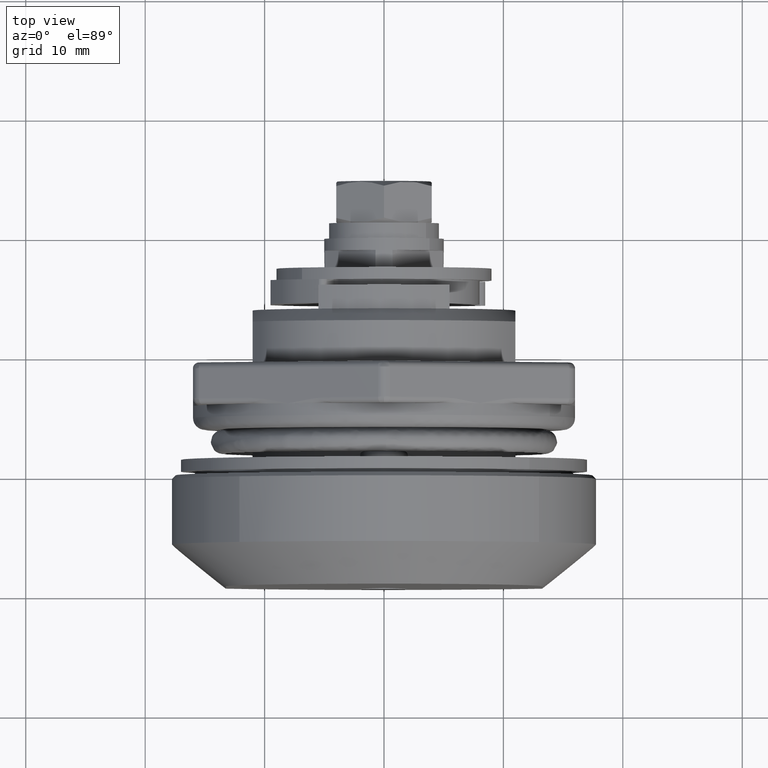
[diagram: clean part render]
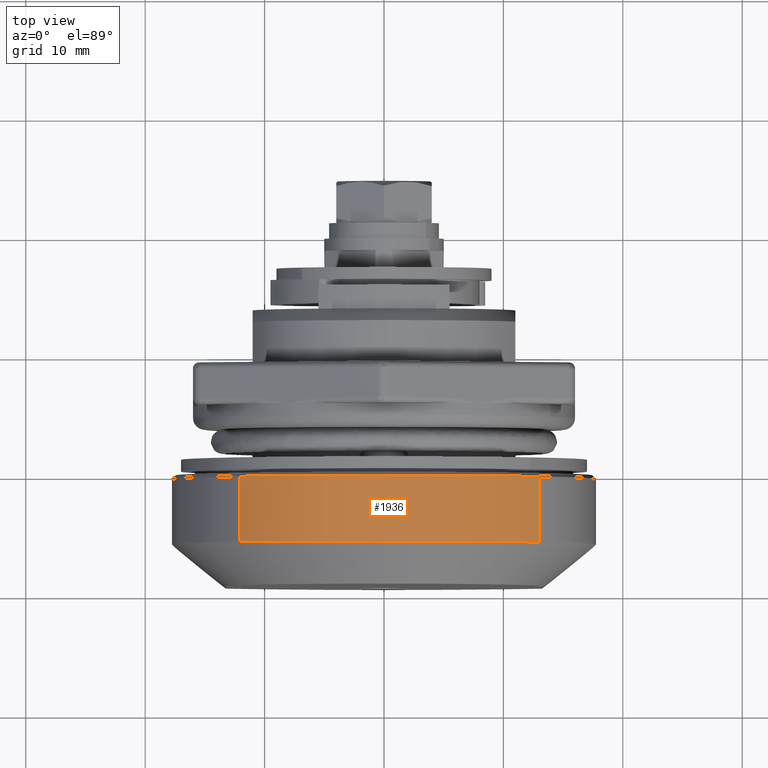
[diagram: same view with one face highlighted and labeled with its STEP entity id]
A machine part, top view. The second image highlights one B-rep face of the part: STEP entity #1936.
In plain terms, the highlighted face is a freeform B-spline surface patch.
Its self-contained STEP definition (entity closure, byte-faithful):
#1763=CARTESIAN_POINT('',(-0.299999999997220,12.107306242099250,12.979816105406989));
#1764=VERTEX_POINT('',#1763);
#1777=CARTESIAN_POINT('',(-0.300000000000000,0.0,17.750000000000000));
#1778=VERTEX_POINT('',#1777);
#1779=CARTESIAN_POINT('',(-0.300000000000000,0.0,17.750000000000000));
#1780=CARTESIAN_POINT('',(-0.299999999999770,1.006226829136668,17.750091193689251));
#1781=CARTESIAN_POINT('',(-0.299999999999415,2.532873131370646,17.619811555376351));
#1782=CARTESIAN_POINT('',(-0.299999999998932,4.670980593120332,17.155003029517321));
#1783=CARTESIAN_POINT('',(-0.299999999998435,6.786533789630799,16.468726694976510));
#1784=CARTESIAN_POINT('',(-0.299999999997842,9.411574786262937,15.176525024285720));
#1785=CARTESIAN_POINT('',(-0.299999999997425,11.219385422428079,13.808315737100470));
#1786=CARTESIAN_POINT('',(-0.299999999997220,12.107306242099250,12.979816105406989));
#1787=B_SPLINE_CURVE_WITH_KNOTS('',3,(#1779,#1780,#1781,#1782,#1783,#1784,#1785,#1786),.UNSPECIFIED.,.F.,.U.,(4,1,1,1,1,4),(0.000000012447657,3.018662438995902,4.580047523440021,6.557801926332750,9.680539656218102,13.323754446892350),.UNSPECIFIED.);
#1788=EDGE_CURVE('',#1778,#1764,#1787,.T.);
#1790=CARTESIAN_POINT('',(-0.300000000002757,-12.979816493215839,12.107306605198509));
#1791=VERTEX_POINT('',#1790);
#1792=CARTESIAN_POINT('',(-0.300000000002757,-12.979816493215839,12.107306605198509));
#1793=CARTESIAN_POINT('',(-0.300000000002619,-12.333376234274271,12.800417339755789));
#1794=CARTESIAN_POINT('',(-0.300000000002309,-10.872938221337080,14.134019919311751));
#1795=CARTESIAN_POINT('',(-0.300000000001746,-8.219863528775262,15.847740628027649));
#1796=CARTESIAN_POINT('',(-0.300000000001136,-5.362860653809641,17.014285346824568));
#1797=CARTESIAN_POINT('',(-0.300000000000546,-2.540039470968923,17.629537791345861));
#1798=CARTESIAN_POINT('',(-0.300000000000168,-0.834046009437422,17.750032192923982));
#1799=CARTESIAN_POINT('',(-0.300000000000000,0.0,17.750000000000000));
#1800=B_SPLINE_CURVE_WITH_KNOTS('',3,(#1792,#1793,#1794,#1795,#1796,#1797,#1798,#1799),.UNSPECIFIED.,.F.,.U.,(4,1,1,1,1,4),(0.000000014747457,2.843341889444750,5.914166655235835,9.439901523748425,12.055784139336421,14.557924357228870),.UNSPECIFIED.);
#1801=EDGE_CURVE('',#1791,#1778,#1800,.T.);
#1880=CARTESIAN_POINT('',(-0.087500000000000,-12.979816143557064,12.107306590627617));
#1881=CARTESIAN_POINT('',(-0.087500000000000,-0.872509682915481,25.087122594831239));
#1882=CARTESIAN_POINT('',(-0.087500000000000,12.107306451274180,12.979816273543101));
#1883=CARTESIAN_POINT('',(-6.074724964638860,-12.979816143557064,12.107306590627617));
#1884=CARTESIAN_POINT('',(-6.074724964638860,-0.872509682915481,25.087122594831239));
#1885=CARTESIAN_POINT('',(-6.074724964638860,12.107306451274180,12.979816273543101));
#1893=(BOUNDED_SURFACE()B_SPLINE_SURFACE(2,1,((#1880,#1883),(#1881,#1884),(#1882,#1885)),.UNSPECIFIED.,.F.,.F.,.U.)B_SPLINE_SURFACE_WITH_KNOTS((3,3),(2,2),(0.0,29.409162705226699),(0.0,5.987224964638862),.UNSPECIFIED.)GEOMETRIC_REPRESENTATION_ITEM()RATIONAL_B_SPLINE_SURFACE(((0.999999995552935,0.999999995552935),(0.707106783410080,0.707106783410080),(1.0,1.0)))REPRESENTATION_ITEM('')SURFACE());
#1894=ORIENTED_EDGE('',*,*,#1801,.T.);
#1895=ORIENTED_EDGE('',*,*,#1788,.T.);
#1896=CARTESIAN_POINT('',(-5.800000000000001,12.107306605702950,12.979816492745311));
#1897=VERTEX_POINT('',#1896);
#1898=CARTESIAN_POINT('',(-0.299999999997220,12.107306242099250,12.979816105406989));
#1899=CARTESIAN_POINT('',(-5.800000000000001,12.107306605702950,12.979816492745311));
#1900=QUASI_UNIFORM_CURVE('',1,(#1898,#1899),.UNSPECIFIED.,.F.,.U.);
#1901=EDGE_CURVE('',#1764,#1897,#1900,.T.);
#1902=ORIENTED_EDGE('',*,*,#1901,.T.);
#1903=CARTESIAN_POINT('',(-5.800000000000000,0.000001065090910,17.749999999999972));
#1904=VERTEX_POINT('',#1903);
#1905=CARTESIAN_POINT('',(-5.800000000000000,0.000001065090910,17.749999999999972));
#1906=CARTESIAN_POINT('',(-5.799999999999983,0.798036926882497,17.750030957190120));
#1907=CARTESIAN_POINT('',(-5.800000000000040,2.394099621480562,17.642171542578339));
#1908=CARTESIAN_POINT('',(-5.799999999999977,4.983214241943204,17.111193657774610));
#1909=CARTESIAN_POINT('',(-5.800000000000028,7.397564968917640,16.208647686525872));
#1910=CARTESIAN_POINT('',(-5.799999999999986,9.889180442957699,14.823846585779380));
#1911=CARTESIAN_POINT('',(-5.800000000000018,11.320820988999159,13.713574716011671));
#1912=CARTESIAN_POINT('',(-5.800000000000001,12.107306605702950,12.979816492745311));
#1913=B_SPLINE_CURVE_WITH_KNOTS('',3,(#1905,#1906,#1907,#1908,#1909,#1910,#1911,#1912),.UNSPECIFIED.,.F.,.U.,(4,1,1,1,1,4),(0.000000012449643,2.394107098350048,4.788230219082760,7.910967220231180,10.096907487131260,13.323753582870969),.UNSPECIFIED.);
#1914=EDGE_CURVE('',#1904,#1897,#1913,.T.);
#1915=ORIENTED_EDGE('',*,*,#1914,.F.);
#1916=CARTESIAN_POINT('',(-5.800000000000001,-12.979816104936470,12.107306242603681));
#1917=VERTEX_POINT('',#1916);
#1918=CARTESIAN_POINT('',(-5.800000000000001,-12.979816104936470,12.107306242603681));
#1919=CARTESIAN_POINT('',(-5.799999999999989,-12.023238896623990,13.133284108558129));
#1920=CARTESIAN_POINT('',(-5.800000000000027,-10.127499346849390,14.734644396062190));
#1921=CARTESIAN_POINT('',(-5.799999999999979,-7.445514489878987,16.176737665541950));
#1922=CARTESIAN_POINT('',(-5.799999999999987,-5.097197698752839,17.048885084765018));
#1923=CARTESIAN_POINT('',(-5.800000000000030,-2.767501279045614,17.603913506310779));
#1924=CARTESIAN_POINT('',(-5.799999999999973,-0.947781021590621,17.750056118481432));
#1925=CARTESIAN_POINT('',(-5.800000000000000,0.000001065090910,17.749999999999972));
#1926=B_SPLINE_CURVE_WITH_KNOTS('',3,(#1918,#1919,#1920,#1921,#1922,#1923,#1924,#1925),.UNSPECIFIED.,.F.,.U.,(4,1,1,1,1,4),(0.000000014750404,4.208153362101553,7.392680136938377,9.098702141704813,11.714583164537990,14.557925204769470),.UNSPECIFIED.);
#1927=EDGE_CURVE('',#1917,#1904,#1926,.T.);
#1928=ORIENTED_EDGE('',*,*,#1927,.F.);
#1929=CARTESIAN_POINT('',(-0.300000000002757,-12.979816493215839,12.107306605198509));
#1930=CARTESIAN_POINT('',(-5.800000000000001,-12.979816104936470,12.107306242603681));
#1931=QUASI_UNIFORM_CURVE('',1,(#1929,#1930),.UNSPECIFIED.,.F.,.U.);
#1932=EDGE_CURVE('',#1791,#1917,#1931,.T.);
#1933=ORIENTED_EDGE('',*,*,#1932,.F.);
#1934=EDGE_LOOP('',(#1894,#1895,#1902,#1915,#1928,#1933));
#1935=FACE_OUTER_BOUND('',#1934,.T.);
#1936=ADVANCED_FACE('',(#1935),#1893,.T.);